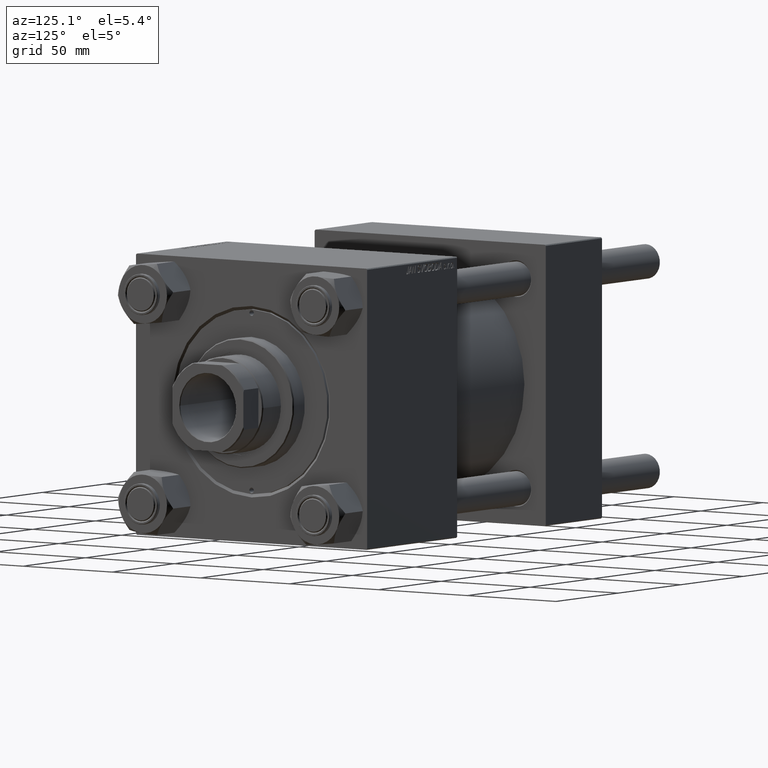
[diagram: clean part render]
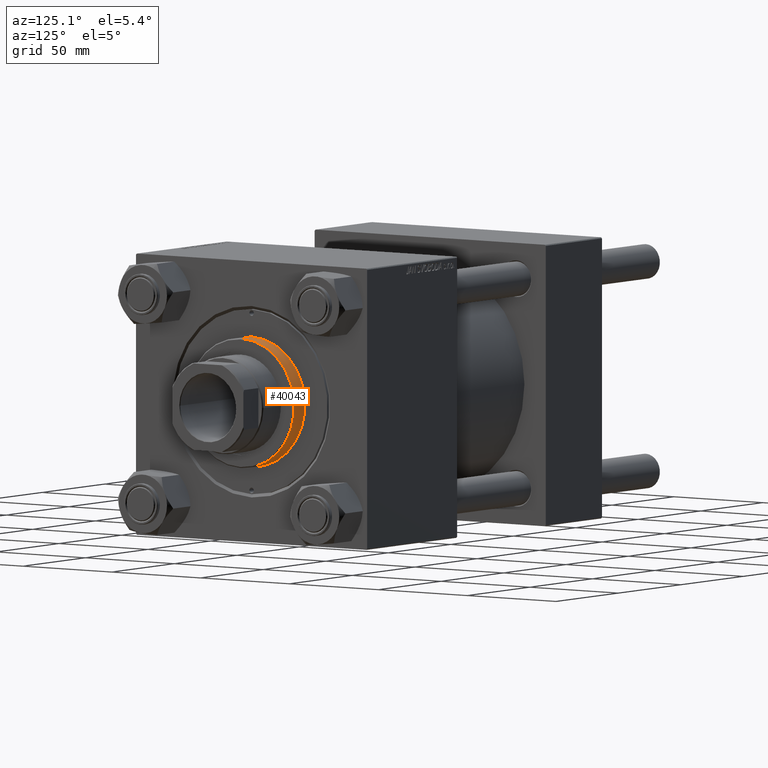
[diagram: same view with one face highlighted and labeled with its STEP entity id]
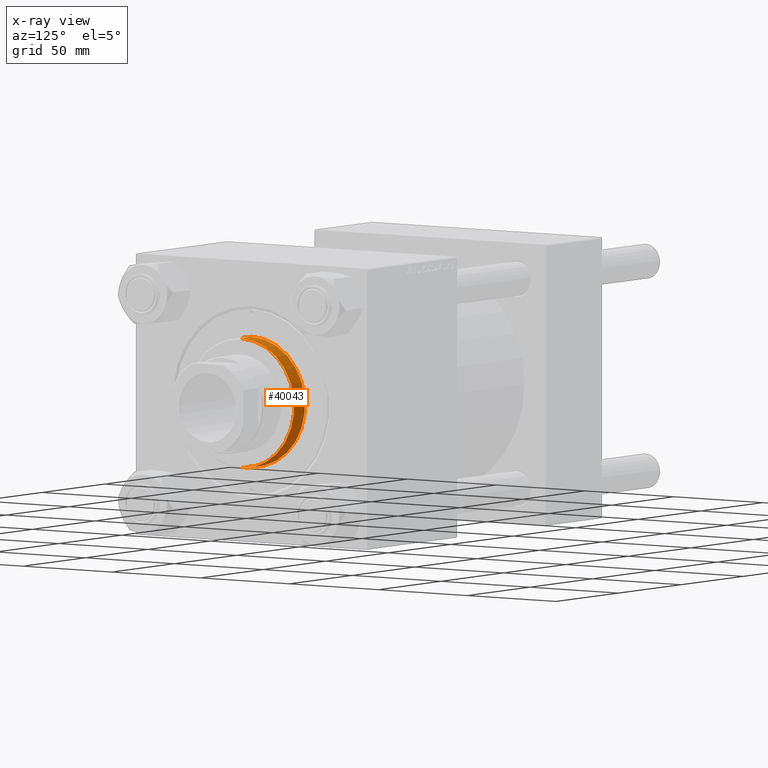
[diagram: x-ray of the same camera — body ghosted, the highlighted face saturated]
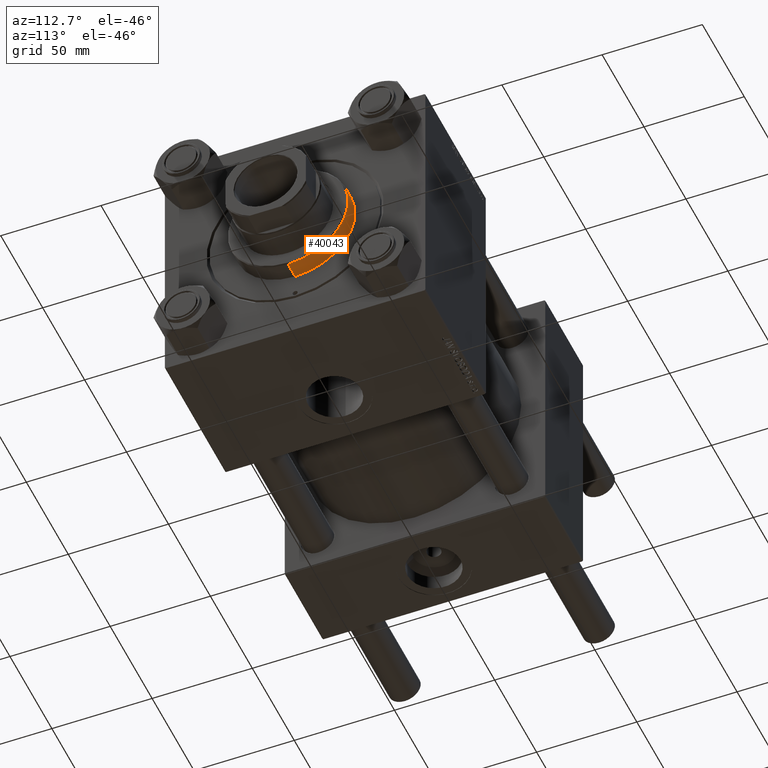
[diagram: same view with one face highlighted and labeled with its STEP entity id]
A machine part, auxiliary view. The second image highlights one B-rep face of the part: STEP entity #40043.
The next image is the same camera in x-ray: the body ghosted, the highlighted face saturated — about 0% of this face is hidden behind the body in this view.
A second angle (auxiliary view) of the same face is appended — the face is thin or edge-on in the first view.
In plain terms, the highlighted cylindrical surface (partial cylindrical patch) has radius 30 mm, axis along (-1, -0, 0).
Its self-contained STEP definition (entity closure, byte-faithful):
#480 = EDGE_CURVE ( 'NONE', #12801, #30090, #30323, .T. ) ;
#3076 = DIRECTION ( 'NONE',  ( 0.000000000000000000, 0.000000000000000000, 1.000000000000000000 ) ) ;
#3318 = EDGE_CURVE ( 'NONE', #36414, #30090, #14600, .T. ) ;
#3522 = CARTESIAN_POINT ( 'NONE',  ( -30.00000000000000000, 0.000000000000000000, 28.69999999999999929 ) ) ;
#5652 = AXIS2_PLACEMENT_3D ( 'NONE', #29342, #3076, #44917 ) ;
#7297 = EDGE_CURVE ( 'NONE', #31219, #36414, #20769, .T. ) ;
#8701 = CARTESIAN_POINT ( 'NONE',  ( 30.00000000000000000, 3.673940397442059178E-15, 37.19999999999998863 ) ) ;
#8986 = CIRCLE ( 'NONE', #17099, 30.00000000000000000 ) ;
#12620 = DIRECTION ( 'NONE',  ( -0.000000000000000000, -0.000000000000000000, -1.000000000000000000 ) ) ;
#12801 = VERTEX_POINT ( 'NONE', #41190 ) ;
#13125 = CARTESIAN_POINT ( 'NONE',  ( 30.00000000000000000, 3.673940397442059178E-15, 37.69999999999999574 ) ) ;
#14600 = CIRCLE ( 'NONE', #5652, 30.00000000000000000 ) ;
#15240 = DIRECTION ( 'NONE',  ( 1.000000000000000000, 0.000000000000000000, 0.000000000000000000 ) ) ;
#16101 = VECTOR ( 'NONE', #45894, 1000.000000000000000 ) ;
#17099 = AXIS2_PLACEMENT_3D ( 'NONE', #38463, #27216, #15240 ) ;
#17367 = VECTOR ( 'NONE', #12620, 1000.000000000000000 ) ;
#20769 = LINE ( 'NONE', #13125, #17367 ) ;
#27216 = DIRECTION ( 'NONE',  ( 0.000000000000000000, 0.000000000000000000, -1.000000000000000000 ) ) ;
#28593 = DIRECTION ( 'NONE',  ( -1.000000000000000000, 0.000000000000000000, 0.000000000000000000 ) ) ;
#29342 = CARTESIAN_POINT ( 'NONE',  ( 0.000000000000000000, 0.000000000000000000, 28.69999999999999929 ) ) ;
#29349 = FACE_OUTER_BOUND ( 'NONE', #41343, .T. ) ;
#30090 = VERTEX_POINT ( 'NONE', #3522 ) ;
#30323 = LINE ( 'NONE', #49227, #16101 ) ;
#31219 = VERTEX_POINT ( 'NONE', #8701 ) ;
#32682 = EDGE_CURVE ( 'NONE', #12801, #31219, #8986, .T. ) ;
#32688 = CARTESIAN_POINT ( 'NONE',  ( 0.000000000000000000, 0.000000000000000000, 37.69999999999999574 ) ) ;
#32851 = ORIENTED_EDGE ( 'NONE', *, *, #7297, .T. ) ;
#36414 = VERTEX_POINT ( 'NONE', #49222 ) ;
#36645 = ORIENTED_EDGE ( 'NONE', *, *, #3318, .T. ) ;
#37633 = ORIENTED_EDGE ( 'NONE', *, *, #480, .F. ) ;
#38463 = CARTESIAN_POINT ( 'NONE',  ( 0.000000000000000000, 0.000000000000000000, 37.19999999999998863 ) ) ;
#40043 = ADVANCED_FACE ( 'NONE', ( #29349 ), #48762, .T. ) ;
#40599 = DIRECTION ( 'NONE',  ( -0.000000000000000000, -0.000000000000000000, -1.000000000000000000 ) ) ;
#41190 = CARTESIAN_POINT ( 'NONE',  ( -30.00000000000000000, 0.000000000000000000, 37.19999999999998863 ) ) ;
#41343 = EDGE_LOOP ( 'NONE', ( #41741, #32851, #36645, #37633 ) ) ;
#41741 = ORIENTED_EDGE ( 'NONE', *, *, #32682, .T. ) ;
#44917 = DIRECTION ( 'NONE',  ( 1.000000000000000000, 0.000000000000000000, 0.000000000000000000 ) ) ;
#45894 = DIRECTION ( 'NONE',  ( -0.000000000000000000, -0.000000000000000000, -1.000000000000000000 ) ) ;
#47482 = AXIS2_PLACEMENT_3D ( 'NONE', #32688, #40599, #28593 ) ;
#48762 = CYLINDRICAL_SURFACE ( 'NONE', #47482, 30.00000000000000000 ) ;
#49222 = CARTESIAN_POINT ( 'NONE',  ( 30.00000000000000000, 3.673940397442059178E-15, 28.69999999999999929 ) ) ;
#49227 = CARTESIAN_POINT ( 'NONE',  ( -30.00000000000000000, 0.000000000000000000, 37.69999999999999574 ) ) ;